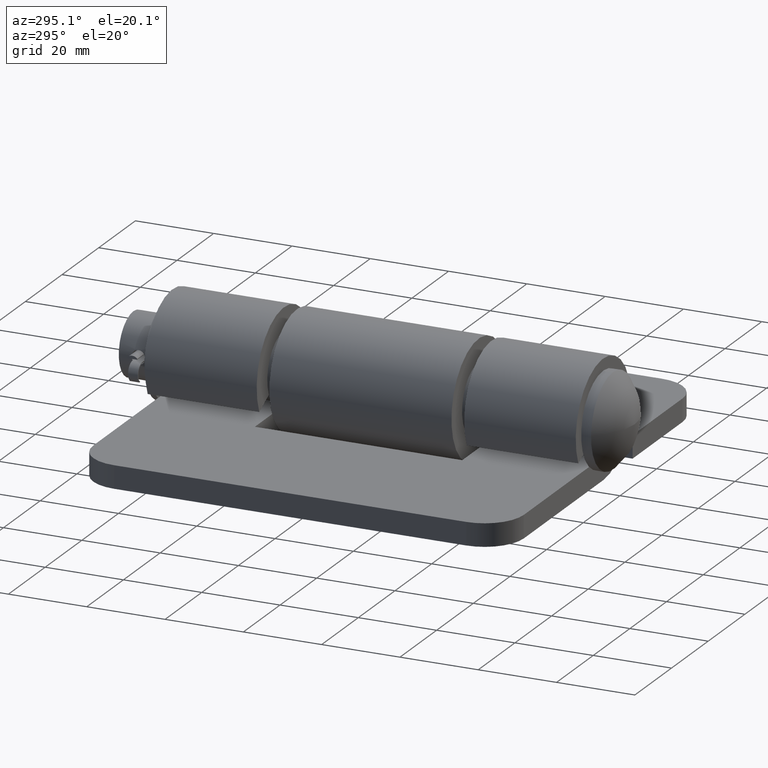
[diagram: clean part render]
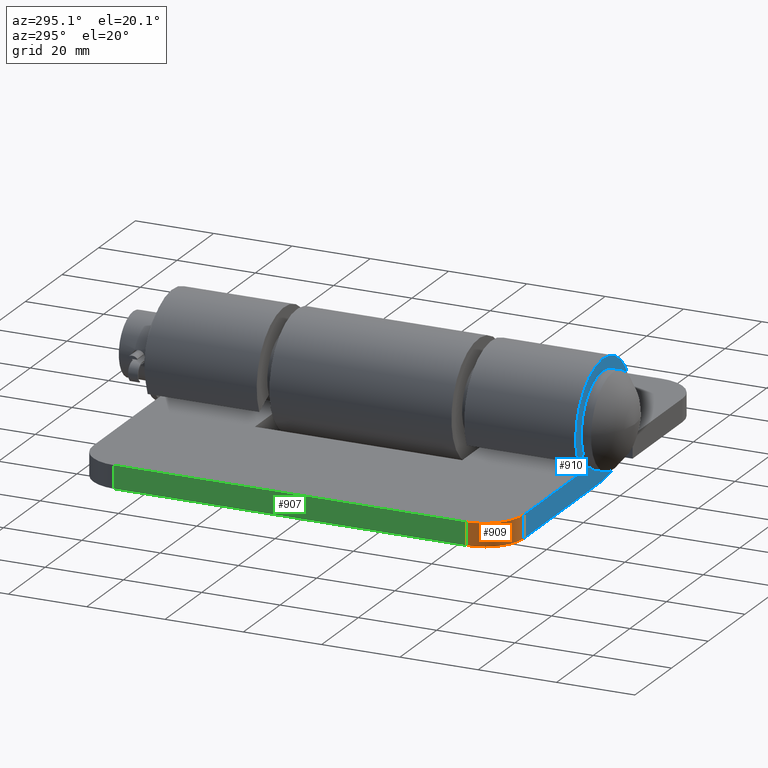
[diagram: same view with three faces highlighted in distinct colors, each labeled with its STEP entity id]
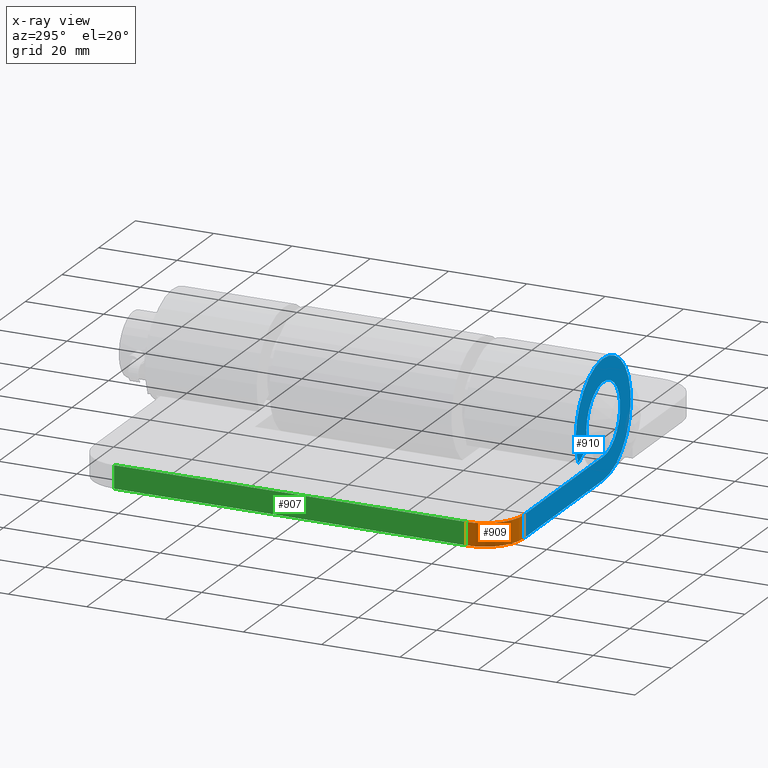
[diagram: x-ray of the same camera — body ghosted, the three highlighted faces saturated]
A machine part, auxiliary view with three faces highlighted in distinct colors.
The next image is the same camera in x-ray (body ghosted, the three faces saturated) — at least one of them is partly hidden behind the body in this view.
Their STEP definitions:

[orange] entity #909 — the highlighted cylindrical surface (partial cylindrical patch) has radius 10 mm, axis along (0, 0, 1).
#81=FACE_OUTER_BOUND('',#137,.T.);
#137=EDGE_LOOP('',(#643,#644,#645,#646));
#203=LINE('',#1390,#280);
#212=LINE('',#1411,#289);
#280=VECTOR('',#1090,5.8);
#289=VECTOR('',#1107,5.8);
#356=CIRCLE('',#972,10.);
#357=CIRCLE('',#974,10.);
#409=VERTEX_POINT('',#1387);
#410=VERTEX_POINT('',#1389);
#417=VERTEX_POINT('',#1405);
#418=VERTEX_POINT('',#1409);
#500=EDGE_CURVE('',#410,#409,#203,.T.);
#509=EDGE_CURVE('',#409,#417,#356,.T.);
#510=EDGE_CURVE('',#418,#410,#357,.T.);
#511=EDGE_CURVE('',#417,#418,#212,.T.);
#643=ORIENTED_EDGE('',*,*,#510,.T.);
#644=ORIENTED_EDGE('',*,*,#500,.T.);
#645=ORIENTED_EDGE('',*,*,#509,.T.);
#646=ORIENTED_EDGE('',*,*,#511,.T.);
#886=CYLINDRICAL_SURFACE('',#973,10.);
#909=ADVANCED_FACE('',(#81),#886,.T.);
#972=AXIS2_PLACEMENT_3D('',#1407,#1101,#1102);
#973=AXIS2_PLACEMENT_3D('',#1408,#1103,#1104);
#974=AXIS2_PLACEMENT_3D('',#1410,#1105,#1106);
#1090=DIRECTION('',(0.,-1.,0.));
#1101=DIRECTION('center_axis',(-3.38800453524109E-17,1.,0.));
#1102=DIRECTION('ref_axis',(-0.707106781186547,0.,0.707106781186547));
#1103=DIRECTION('center_axis',(0.,1.,0.));
#1104=DIRECTION('ref_axis',(-0.707106781186547,0.,0.707106781186547));
#1105=DIRECTION('center_axis',(2.91889621497694E-16,-1.,0.));
#1106=DIRECTION('ref_axis',(-0.707106781186547,0.,0.707106781186547));
#1107=DIRECTION('',(0.,1.,0.));
#1387=CARTESIAN_POINT('',(-53.25,-1.80411241501588E-15,45.));
#1389=CARTESIAN_POINT('',(-53.25,5.8,45.));
#1390=CARTESIAN_POINT('',(-53.25,7.67080088645184,45.));
#1405=CARTESIAN_POINT('',(-43.25,-1.46531196149177E-15,55.));
#1407=CARTESIAN_POINT('Origin',(-43.25,0.,45.));
#1408=CARTESIAN_POINT('Origin',(-43.25,7.67080088645184,45.));
#1409=CARTESIAN_POINT('',(-43.25,5.8,55.));
#1410=CARTESIAN_POINT('Origin',(-43.25,5.8,45.));
#1411=CARTESIAN_POINT('',(-43.25,7.67080088645184,55.));

[blue] entity #910 — the highlighted planar face has unit normal (0, -1, 0).
#50=PLANE('',#975);
#82=FACE_OUTER_BOUND('',#138,.T.);
#138=EDGE_LOOP('',(#647,#648,#649,#650,#651,#652));
#211=LINE('',#1406,#288);
#212=LINE('',#1411,#289);
#213=LINE('',#1416,#290);
#214=LINE('',#1419,#291);
#288=VECTOR('',#1100,43.25);
#289=VECTOR('',#1107,5.8);
#290=VECTOR('',#1112,5.80000000000001);
#291=VECTOR('',#1115,43.25);
#358=CIRCLE('',#976,15.);
#359=CIRCLE('',#977,9.2);
#416=VERTEX_POINT('',#1403);
#417=VERTEX_POINT('',#1405);
#418=VERTEX_POINT('',#1409);
#419=VERTEX_POINT('',#1413);
#420=VERTEX_POINT('',#1415);
#421=VERTEX_POINT('',#1417);
#508=EDGE_CURVE('',#416,#417,#211,.T.);
#511=EDGE_CURVE('',#417,#418,#212,.T.);
#512=EDGE_CURVE('',#419,#416,#358,.T.);
#513=EDGE_CURVE('',#420,#419,#213,.T.);
#514=EDGE_CURVE('',#421,#420,#359,.T.);
#515=EDGE_CURVE('',#418,#421,#214,.T.);
#647=ORIENTED_EDGE('',*,*,#511,.F.);
#648=ORIENTED_EDGE('',*,*,#508,.F.);
#649=ORIENTED_EDGE('',*,*,#512,.F.);
#650=ORIENTED_EDGE('',*,*,#513,.F.);
#651=ORIENTED_EDGE('',*,*,#514,.F.);
#652=ORIENTED_EDGE('',*,*,#515,.F.);
#910=ADVANCED_FACE('',(#82),#50,.T.);
#975=AXIS2_PLACEMENT_3D('',#1412,#1108,#1109);
#976=AXIS2_PLACEMENT_3D('',#1414,#1110,#1111);
#977=AXIS2_PLACEMENT_3D('',#1418,#1113,#1114);
#1100=DIRECTION('',(-1.,-3.38800453524109E-17,0.));
#1107=DIRECTION('',(0.,1.,0.));
#1108=DIRECTION('center_axis',(0.,0.,1.));
#1109=DIRECTION('ref_axis',(1.,0.,0.));
#1110=DIRECTION('center_axis',(0.,0.,-1.));
#1111=DIRECTION('ref_axis',(2.03307067601102E-32,-1.,0.));
#1112=DIRECTION('',(-0.90630778703665,-0.422618261740699,0.));
#1113=DIRECTION('center_axis',(0.,0.,1.));
#1114=DIRECTION('ref_axis',(-1.22464679914735E-16,1.,0.));
#1115=DIRECTION('',(1.,2.91889621497694E-16,0.));
#1403=CARTESIAN_POINT('',(0.,0.,55.));
#1405=CARTESIAN_POINT('',(-43.25,-1.46531196149177E-15,55.));
#1406=CARTESIAN_POINT('',(-53.25,-1.80411241501588E-15,55.));
#1409=CARTESIAN_POINT('',(-43.25,5.8,55.));
#1411=CARTESIAN_POINT('',(-43.25,7.67080088645184,55.));
#1412=CARTESIAN_POINT('Origin',(0.21762433055605,15.3416017729037,55.));
#1413=CARTESIAN_POINT('',(-13.5946168055498,8.66072607388952,55.));
#1414=CARTESIAN_POINT('Origin',(-3.04960601401653E-31,15.,55.));
#1415=CARTESIAN_POINT('',(-8.33803164073718,11.1119119919856,55.));
#1416=CARTESIAN_POINT('',(-13.5946168055498,8.66072607388952,55.));
#1417=CARTESIAN_POINT('',(1.12667505521556E-15,5.80000000000001,55.));
#1418=CARTESIAN_POINT('Origin',(-3.04960601401653E-31,15.,55.));
#1419=CARTESIAN_POINT('',(0.,5.80000000000001,55.));

[green] entity #907 — the highlighted planar face has unit normal (-1, 0, 0).
#48=PLANE('',#970);
#79=FACE_OUTER_BOUND('',#135,.T.);
#135=EDGE_LOOP('',(#629,#630,#631,#632));
#200=LINE('',#1382,#277);
#202=LINE('',#1388,#279);
#203=LINE('',#1390,#280);
#204=LINE('',#1391,#281);
#277=VECTOR('',#1083,5.8);
#279=VECTOR('',#1089,90.);
#280=VECTOR('',#1090,5.8);
#281=VECTOR('',#1091,90.);
#406=VERTEX_POINT('',#1379);
#407=VERTEX_POINT('',#1381);
#409=VERTEX_POINT('',#1387);
#410=VERTEX_POINT('',#1389);
#496=EDGE_CURVE('',#406,#407,#200,.T.);
#499=EDGE_CURVE('',#406,#409,#202,.T.);
#500=EDGE_CURVE('',#410,#409,#203,.T.);
#501=EDGE_CURVE('',#407,#410,#204,.T.);
#629=ORIENTED_EDGE('',*,*,#496,.F.);
#630=ORIENTED_EDGE('',*,*,#499,.T.);
#631=ORIENTED_EDGE('',*,*,#500,.F.);
#632=ORIENTED_EDGE('',*,*,#501,.F.);
#907=ADVANCED_FACE('',(#79),#48,.T.);
#970=AXIS2_PLACEMENT_3D('',#1386,#1087,#1088);
#1083=DIRECTION('',(0.,1.,0.));
#1087=DIRECTION('center_axis',(-1.,0.,0.));
#1088=DIRECTION('ref_axis',(0.,0.,1.));
#1089=DIRECTION('',(0.,0.,1.));
#1090=DIRECTION('',(0.,-1.,0.));
#1091=DIRECTION('',(0.,0.,1.));
#1379=CARTESIAN_POINT('',(-53.25,-1.80411241501588E-15,-45.));
#1381=CARTESIAN_POINT('',(-53.25,5.8,-45.));
#1382=CARTESIAN_POINT('',(-53.25,7.67080088645184,-45.));
#1386=CARTESIAN_POINT('Origin',(-53.25,-1.80411241501588E-15,0.));
#1387=CARTESIAN_POINT('',(-53.25,-1.80411241501588E-15,45.));
#1388=CARTESIAN_POINT('',(-53.25,-1.80411241501588E-15,0.));
#1389=CARTESIAN_POINT('',(-53.25,5.8,45.));
#1390=CARTESIAN_POINT('',(-53.25,7.67080088645184,45.));
#1391=CARTESIAN_POINT('',(-53.25,5.8,0.));